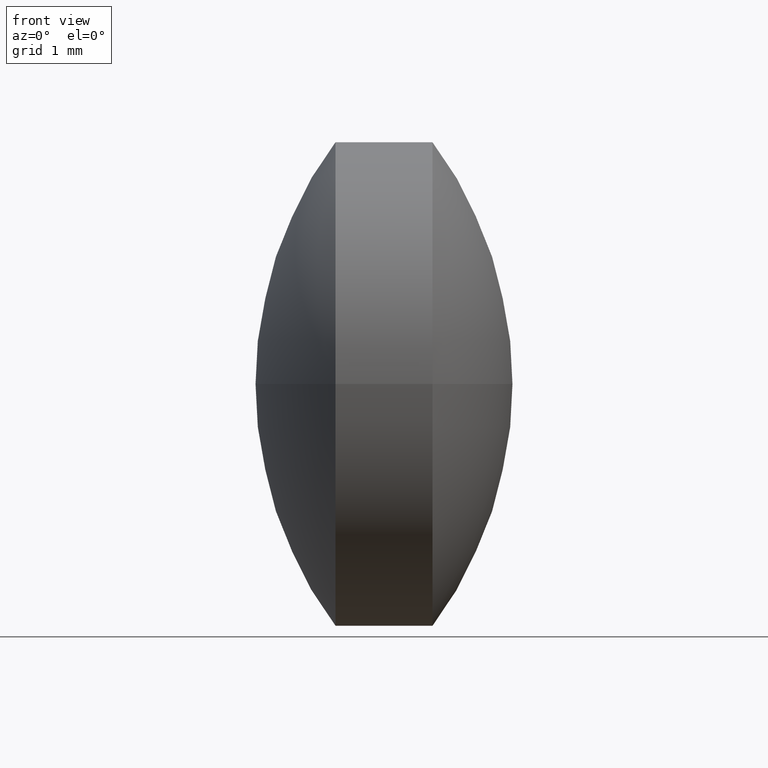
[diagram: clean part render]
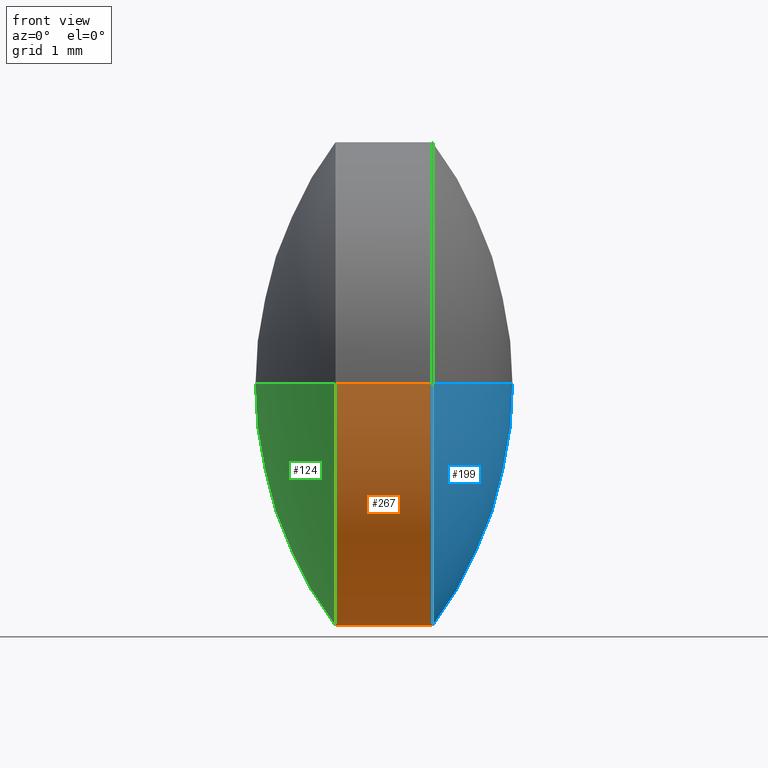
[diagram: same view with three faces highlighted in distinct colors, each labeled with its STEP entity id]
A machine part, front view with three faces highlighted in distinct colors.
Their STEP definitions:

[orange] entity #267 — the highlighted cylindrical surface (partial cylindrical patch) has radius 2.5 mm, axis along (-1, 0, -0).
#5 = CARTESIAN_POINT ( 'NONE',  ( 16.51932948320126100, 7.070100988815897700, -3.061616997868377200E-016 ) ) ;
#9 = CARTESIAN_POINT ( 'NONE',  ( 17.51932948320127200, 12.07010098881589100, 0.0000000000000000000 ) ) ;
#10 = CYLINDRICAL_SURFACE ( 'NONE', #87, 2.500000000000001300 ) ;
#15 = EDGE_CURVE ( 'NONE', #295, #54, #244, .T. ) ;
#16 = ORIENTED_EDGE ( 'NONE', *, *, #91, .T. ) ;
#21 = VERTEX_POINT ( 'NONE', #74 ) ;
#52 = AXIS2_PLACEMENT_3D ( 'NONE', #234, #221, #104 ) ;
#54 = VERTEX_POINT ( 'NONE', #230 ) ;
#55 = VECTOR ( 'NONE', #289, 1000.000000000000000 ) ;
#74 = CARTESIAN_POINT ( 'NONE',  ( 16.51932948320127200, 12.07010098881588600, 0.0000000000000000000 ) ) ;
#75 = ORIENTED_EDGE ( 'NONE', *, *, #15, .T. ) ;
#79 = DIRECTION ( 'NONE',  ( -1.000000000000000000, 2.438814065442388400E-015, -0.0000000000000000000 ) ) ;
#86 = ORIENTED_EDGE ( 'NONE', *, *, #127, .F. ) ;
#87 = AXIS2_PLACEMENT_3D ( 'NONE', #217, #128, #233 ) ;
#91 = EDGE_CURVE ( 'NONE', #54, #286, #194, .T. ) ;
#92 = CARTESIAN_POINT ( 'NONE',  ( 15.23618010071484900, 7.070100988815892300, 0.0000000000000000000 ) ) ;
#104 = DIRECTION ( 'NONE',  ( -2.775557561562891000E-015, -1.000000000000000000, 0.0000000000000000000 ) ) ;
#115 = CIRCLE ( 'NONE', #52, 2.500000000000000400 ) ;
#122 = DIRECTION ( 'NONE',  ( -2.775557561562889000E-015, -1.000000000000000000, 0.0000000000000000000 ) ) ;
#126 = CARTESIAN_POINT ( 'NONE',  ( 15.23618010071486100, 12.07010098881589300, 3.061616997868385100E-016 ) ) ;
#127 = EDGE_CURVE ( 'NONE', #21, #286, #115, .T. ) ;
#128 = DIRECTION ( 'NONE',  ( -1.000000000000000000, 2.438814065442388400E-015, -0.0000000000000000000 ) ) ;
#167 = LINE ( 'NONE', #126, #55 ) ;
#190 = FACE_OUTER_BOUND ( 'NONE', #279, .T. ) ;
#194 = LINE ( 'NONE', #92, #238 ) ;
#212 = DIRECTION ( 'NONE',  ( -1.000000000000000000, 2.438814065442388400E-015, -0.0000000000000000000 ) ) ;
#217 = CARTESIAN_POINT ( 'NONE',  ( 15.23618010071485400, 9.570100988815893200, 0.0000000000000000000 ) ) ;
#221 = DIRECTION ( 'NONE',  ( -1.000000000000000000, 2.438814065442388400E-015, -0.0000000000000000000 ) ) ;
#230 = CARTESIAN_POINT ( 'NONE',  ( 17.51932948320125800, 7.070100988815880800, -3.061616997868388100E-016 ) ) ;
#233 = DIRECTION ( 'NONE',  ( -2.775557561562889800E-015, -1.000000000000000000, 0.0000000000000000000 ) ) ;
#234 = CARTESIAN_POINT ( 'NONE',  ( 16.51932948320126500, 9.570100988815889700, 0.0000000000000000000 ) ) ;
#235 = ORIENTED_EDGE ( 'NONE', *, *, #305, .F. ) ;
#238 = VECTOR ( 'NONE', #212, 1000.000000000000000 ) ;
#244 = CIRCLE ( 'NONE', #293, 2.500000000000002200 ) ;
#267 = ADVANCED_FACE ( 'NONE', ( #190 ), #10, .T. ) ;
#279 = EDGE_LOOP ( 'NONE', ( #235, #75, #16, #86 ) ) ;
#281 = CARTESIAN_POINT ( 'NONE',  ( 17.51932948320126500, 9.570100988815887900, 0.0000000000000000000 ) ) ;
#286 = VERTEX_POINT ( 'NONE', #5 ) ;
#289 = DIRECTION ( 'NONE',  ( -1.000000000000000000, 2.438814065442388400E-015, -0.0000000000000000000 ) ) ;
#293 = AXIS2_PLACEMENT_3D ( 'NONE', #281, #79, #122 ) ;
#295 = VERTEX_POINT ( 'NONE', #9 ) ;
#305 = EDGE_CURVE ( 'NONE', #295, #21, #167, .T. ) ;

[blue] entity #199 — the highlighted spherical surface has radius 4.202 mm.
#9 = CARTESIAN_POINT ( 'NONE',  ( 17.51932948320127200, 12.07010098881589100, 0.0000000000000000000 ) ) ;
#15 = EDGE_CURVE ( 'NONE', #295, #54, #244, .T. ) ;
#35 = CARTESIAN_POINT ( 'NONE',  ( 14.14195103958820700, 9.570100988815893200, 0.0000000000000000000 ) ) ;
#37 = CIRCLE ( 'NONE', #236, 4.201985858065468100 ) ;
#41 = ORIENTED_EDGE ( 'NONE', *, *, #137, .T. ) ;
#53 = CARTESIAN_POINT ( 'NONE',  ( 14.14195103958820700, 9.570100988815893200, 0.0000000000000000000 ) ) ;
#54 = VERTEX_POINT ( 'NONE', #230 ) ;
#62 = ORIENTED_EDGE ( 'NONE', *, *, #15, .F. ) ;
#65 = CIRCLE ( 'NONE', #98, 4.201985858065468100 ) ;
#79 = DIRECTION ( 'NONE',  ( -1.000000000000000000, 2.438814065442388400E-015, -0.0000000000000000000 ) ) ;
#88 = VERTEX_POINT ( 'NONE', #151 ) ;
#98 = AXIS2_PLACEMENT_3D ( 'NONE', #53, #154, #99 ) ;
#99 = DIRECTION ( 'NONE',  ( 0.0000000000000000000, 1.000000000000000000, 1.224646799147353000E-016 ) ) ;
#122 = DIRECTION ( 'NONE',  ( -2.775557561562889000E-015, -1.000000000000000000, 0.0000000000000000000 ) ) ;
#137 = EDGE_CURVE ( 'NONE', #88, #54, #65, .T. ) ;
#138 = ORIENTED_EDGE ( 'NONE', *, *, #161, .F. ) ;
#151 = CARTESIAN_POINT ( 'NONE',  ( 18.34393689765367700, 9.570100988815882600, 0.0000000000000000000 ) ) ;
#153 = DIRECTION ( 'NONE',  ( 1.000000000000000000, 0.0000000000000000000, 0.0000000000000000000 ) ) ;
#154 = DIRECTION ( 'NONE',  ( 2.986685838959564500E-031, 1.224646799147353200E-016, -1.000000000000000000 ) ) ;
#156 = DIRECTION ( 'NONE',  ( 2.477005208354672900E-015, 1.000000000000000000, 0.0000000000000000000 ) ) ;
#161 = EDGE_CURVE ( 'NONE', #88, #295, #37, .T. ) ;
#162 = SPHERICAL_SURFACE ( 'NONE', #253, 4.201985858065468100 ) ;
#197 = CARTESIAN_POINT ( 'NONE',  ( 14.14195103958820700, 9.570100988815893200, 0.0000000000000000000 ) ) ;
#199 = ADVANCED_FACE ( 'NONE', ( #284 ), #162, .T. ) ;
#230 = CARTESIAN_POINT ( 'NONE',  ( 17.51932948320125800, 7.070100988815880800, -3.061616997868388100E-016 ) ) ;
#236 = AXIS2_PLACEMENT_3D ( 'NONE', #197, #285, #153 ) ;
#244 = CIRCLE ( 'NONE', #293, 2.500000000000002200 ) ;
#253 = AXIS2_PLACEMENT_3D ( 'NONE', #35, #260, #156 ) ;
#260 = DIRECTION ( 'NONE',  ( 0.0000000000000000000, 0.0000000000000000000, -1.000000000000000000 ) ) ;
#263 = EDGE_LOOP ( 'NONE', ( #138, #41, #62 ) ) ;
#281 = CARTESIAN_POINT ( 'NONE',  ( 17.51932948320126500, 9.570100988815887900, 0.0000000000000000000 ) ) ;
#284 = FACE_OUTER_BOUND ( 'NONE', #263, .T. ) ;
#285 = DIRECTION ( 'NONE',  ( 0.0000000000000000000, 0.0000000000000000000, 1.000000000000000000 ) ) ;
#293 = AXIS2_PLACEMENT_3D ( 'NONE', #281, #79, #122 ) ;
#295 = VERTEX_POINT ( 'NONE', #9 ) ;

[green] entity #124 — the highlighted spherical surface has radius 4.202 mm.
#5 = CARTESIAN_POINT ( 'NONE',  ( 16.51932948320126100, 7.070100988815897700, -3.061616997868377200E-016 ) ) ;
#20 = AXIS2_PLACEMENT_3D ( 'NONE', #95, #27, #259 ) ;
#21 = VERTEX_POINT ( 'NONE', #74 ) ;
#27 = DIRECTION ( 'NONE',  ( 0.0000000000000000000, 0.0000000000000000000, -1.000000000000000000 ) ) ;
#30 = DIRECTION ( 'NONE',  ( 0.0000000000000000000, 1.000000000000000000, 1.224646799147353000E-016 ) ) ;
#45 = EDGE_CURVE ( 'NONE', #286, #102, #300, .T. ) ;
#49 = DIRECTION ( 'NONE',  ( 2.986685838959564500E-031, 1.224646799147353200E-016, -1.000000000000000000 ) ) ;
#51 = AXIS2_PLACEMENT_3D ( 'NONE', #81, #101, #262 ) ;
#52 = AXIS2_PLACEMENT_3D ( 'NONE', #234, #221, #104 ) ;
#59 = FACE_OUTER_BOUND ( 'NONE', #202, .T. ) ;
#68 = ORIENTED_EDGE ( 'NONE', *, *, #258, .F. ) ;
#74 = CARTESIAN_POINT ( 'NONE',  ( 16.51932948320127200, 12.07010098881588600, 0.0000000000000000000 ) ) ;
#77 = CARTESIAN_POINT ( 'NONE',  ( 19.89670792681433700, 9.570100988815884300, 0.0000000000000000000 ) ) ;
#81 = CARTESIAN_POINT ( 'NONE',  ( 19.89670792681433700, 9.570100988815884300, 0.0000000000000000000 ) ) ;
#95 = CARTESIAN_POINT ( 'NONE',  ( 19.89670792681433700, 9.570100988815884300, 0.0000000000000000000 ) ) ;
#101 = DIRECTION ( 'NONE',  ( 0.0000000000000000000, 0.0000000000000000000, 1.000000000000000000 ) ) ;
#102 = VERTEX_POINT ( 'NONE', #303 ) ;
#104 = DIRECTION ( 'NONE',  ( -2.775557561562891000E-015, -1.000000000000000000, 0.0000000000000000000 ) ) ;
#115 = CIRCLE ( 'NONE', #52, 2.500000000000000400 ) ;
#118 = SPHERICAL_SURFACE ( 'NONE', #20, 4.201985858065468100 ) ;
#124 = ADVANCED_FACE ( 'NONE', ( #59 ), #118, .T. ) ;
#125 = ORIENTED_EDGE ( 'NONE', *, *, #45, .T. ) ;
#127 = EDGE_CURVE ( 'NONE', #21, #286, #115, .T. ) ;
#173 = ORIENTED_EDGE ( 'NONE', *, *, #127, .T. ) ;
#202 = EDGE_LOOP ( 'NONE', ( #173, #125, #68 ) ) ;
#221 = DIRECTION ( 'NONE',  ( -1.000000000000000000, 2.438814065442388400E-015, -0.0000000000000000000 ) ) ;
#226 = AXIS2_PLACEMENT_3D ( 'NONE', #77, #49, #30 ) ;
#234 = CARTESIAN_POINT ( 'NONE',  ( 16.51932948320126500, 9.570100988815889700, 0.0000000000000000000 ) ) ;
#251 = CIRCLE ( 'NONE', #51, 4.201985858065468100 ) ;
#258 = EDGE_CURVE ( 'NONE', #21, #102, #251, .T. ) ;
#259 = DIRECTION ( 'NONE',  ( 2.477005208354672900E-015, 1.000000000000000000, 0.0000000000000000000 ) ) ;
#262 = DIRECTION ( 'NONE',  ( 1.000000000000000000, 0.0000000000000000000, 0.0000000000000000000 ) ) ;
#286 = VERTEX_POINT ( 'NONE', #5 ) ;
#300 = CIRCLE ( 'NONE', #226, 4.201985858065468100 ) ;
#303 = CARTESIAN_POINT ( 'NONE',  ( 15.69472206874886800, 9.570100988815895000, 0.0000000000000000000 ) ) ;